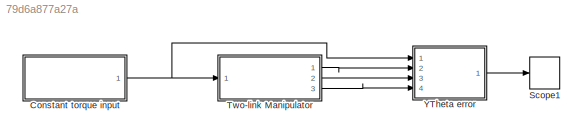
MODEL slx_79d6a877a27a
KIND model
CONFIG AbsTol = auto
CONFIG FixedStep = auto
CONFIG MaxStep = auto
CONFIG MinStep = auto
CONFIG RelTol = 1e-3
CONFIG SampleTimeConstraint = Unconstrained
CONFIG Solver = ode45
CONFIG SolverMode = Auto
CONFIG SolverName = ode45
CONFIG StartTime = 0.0
CONFIG StopTime = 10
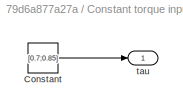
BLOCK [SubSystem] Constant torque input
  Ports = [0, 1]
  RequestExecContextInheritance = off
BLOCK [Constant] Constant torque input/Constant
  Value = [0.7;0.85]
BLOCK [Outport] Constant torque input/tau
  IconDisplay = Port number
BLOCK [TimeScope] Scope1
  NumInputPorts = 1
  Ports = [1]
  ScopeSpecificationString = Simulink.scopes.TimeScopeBlockCfg('CurrentConfiguration', extmgr.ConfigurationSet(extmgr.Configuration('Core','General UI',true,'FigureColor',[1 1 1]),extmgr.Configuration('Core','Source UI',true),extmgr.Configuration('Sources','WiredSimulink',true,'DataLoggingLimitDataPoints',true,'DataLoggingDecimation','1','DataLoggingDecimateData',true,'DataLoggingSaveFormat','Array','DataLoggingVariableName',...<+1906ch>
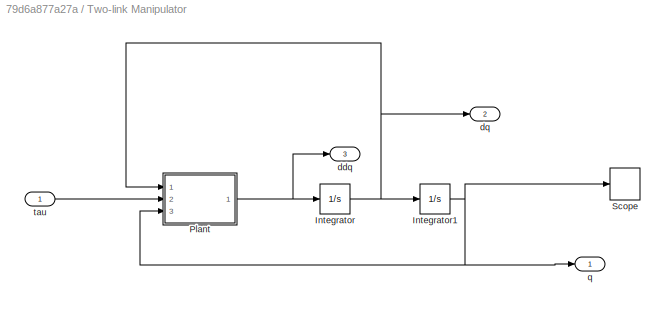
BLOCK [SubSystem] Two-link Manipulator
  Ports = [1, 3]
  RequestExecContextInheritance = off
BLOCK [Integrator] Two-link Manipulator/Integrator
  InitialCondition = [0 0]
  Ports = [1, 1]
BLOCK [Integrator] Two-link Manipulator/Integrator1
  InitialCondition = [0 0]
  Ports = [1, 1]
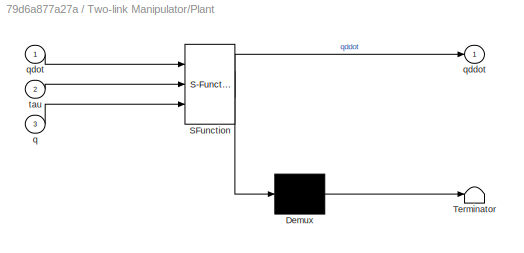
BLOCK [SubSystem] Two-link Manipulator/Plant
  ErrorFcn = Stateflow.Translate.translate
  PermitHierarchicalResolution = ExplicitOnly
  Ports = [3, 1]
  RequestExecContextInheritance = off
  SFBlockType = MATLAB Function
  TreatAsAtomicUnit = on
BLOCK [Demux] Two-link Manipulator/Plant/ Demux 
  Outputs = 1
  Ports = [1, 1]
BLOCK [S-Function] Two-link Manipulator/Plant/ SFunction 
  EnableBusSupport = on
  FunctionName = sf_sfun
  PortCounts = [3 2]
  Ports = [3, 2]
  Tag = Stateflow S-Function HW1_4 2
BLOCK [Terminator] Two-link Manipulator/Plant/ Terminator 
BLOCK [Inport] Two-link Manipulator/Plant/q
  IconDisplay = Port number
  Port = 3
BLOCK [Outport] Two-link Manipulator/Plant/qddot
  IconDisplay = Port number
BLOCK [Inport] Two-link Manipulator/Plant/qdot
  IconDisplay = Port number
BLOCK [Inport] Two-link Manipulator/Plant/tau
  IconDisplay = Port number
  Port = 2
BLOCK [TimeScope] Two-link Manipulator/Scope
  NumInputPorts = 1
  Ports = [1]
  ScopeSpecificationString = Simulink.scopes.TimeScopeBlockCfg('CurrentConfiguration', extmgr.ConfigurationSet(extmgr.Configuration('Core','General UI',true,'FigureColor',[1 1 1]),extmgr.Configuration('Core','Source UI',true),extmgr.Configuration('Sources','WiredSimulink',true,'DataLoggingLimitDataPoints',true,'DataLoggingDecimation','1','DataLoggingDecimateData',true,'DataLoggingSaveFormat','Array','DataLoggingVariableName',...<+1906ch>
BLOCK [Outport] Two-link Manipulator/ddq
  IconDisplay = Port number
  Port = 3
BLOCK [Outport] Two-link Manipulator/dq
  IconDisplay = Port number
  Port = 2
BLOCK [Outport] Two-link Manipulator/q
  IconDisplay = Port number
BLOCK [Inport] Two-link Manipulator/tau
  IconDisplay = Port number
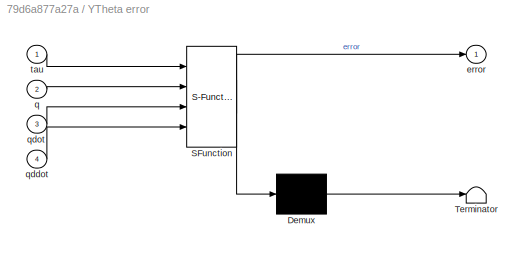
BLOCK [SubSystem] YTheta error
  ErrorFcn = Stateflow.Translate.translate
  PermitHierarchicalResolution = ExplicitOnly
  Ports = [4, 1]
  RequestExecContextInheritance = off
  SFBlockType = MATLAB Function
  TreatAsAtomicUnit = on
BLOCK [Demux] YTheta error/ Demux 
  Outputs = 1
  Ports = [1, 1]
BLOCK [S-Function] YTheta error/ SFunction 
  EnableBusSupport = on
  FunctionName = sf_sfun
  PortCounts = [4 2]
  Ports = [4, 2]
  Tag = Stateflow S-Function HW1_4 3
BLOCK [Terminator] YTheta error/ Terminator 
BLOCK [Outport] YTheta error/error
  IconDisplay = Port number
BLOCK [Inport] YTheta error/q
  IconDisplay = Port number
  Port = 2
BLOCK [Inport] YTheta error/qddot
  IconDisplay = Port number
  Port = 4
BLOCK [Inport] YTheta error/qdot
  IconDisplay = Port number
  Port = 3
BLOCK [Inport] YTheta error/tau
  IconDisplay = Port number
LINE Constant torque input/Constant:1 -> Constant torque input/tau:1
NET Constant torque input:1 -> Two-link Manipulator:1, YTheta error:1
NET Two-link Manipulator/Integrator1:1 -> Two-link Manipulator/Plant:3, Two-link Manipulator/Scope:1, Two-link Manipulator/q:1
NET Two-link Manipulator/Integrator:1 -> Two-link Manipulator/Integrator1:1, Two-link Manipulator/Plant:1, Two-link Manipulator/dq:1
NET Two-link Manipulator/Plant:1 -> Two-link Manipulator/Integrator:1, Two-link Manipulator/ddq:1
LINE Two-link Manipulator/tau:1 -> Two-link Manipulator/Plant:2
LINE Two-link Manipulator:1 -> YTheta error:2
LINE Two-link Manipulator:2 -> YTheta error:3
LINE Two-link Manipulator:3 -> YTheta error:4
LINE YTheta error:1 -> Scope1:1
note: NET lines group one-source signal fan-out (src -> all destinations, sorted); 1:1 wires keep LINE
CHART Two-link Manipulator/Plant states=1 transitions=1
  STATE_LABEL 'eML_blk_kernel()'
  STATE_LABEL 'SCRIPT:\nfunction qddot = fcn(qdot,tau,q)\n%#codegen\nM1=1;\nM2=0.8;\nI1=0.05;\nI2=0.03;\nL1=1.2;\nL2=0.8;\nLc1=L1/2;\nLc2=L2/2;\ng=9.8;\n\nD=[M1*Lc1^2+M2*(L1^2+Lc2^2+2*L1*Lc2*cos(q(2)))+I1+I2 , M2*(Lc2^2+L1*Lc2*cos(q(2)))+I2 ;...\n   M2*(Lc2^2+L1*Lc2*cos(q(2)))+I2                    , M2*Lc2^2+I2];\nC=[-(M2*L1*Lc2*sin(q(2)))*qdot(2) , -(M2*L1*Lc2*sin(q(2)))*(qdot(1)+qdot(2));...\n    (M2*L1*Lc2*sin(q(2)))*qdot(1...<+120ch>'
CHART YTheta error states=1 transitions=1
  STATE_LABEL 'eML_blk_kernel()'
  STATE_LABEL 'SCRIPT:\nfunction error = fcn(tau,q,qdot,qddot)\n%#codegen\nM1=1;\nM2=0.8;\nI1=0.05;\nI2=0.03;\nL1=1.2;\nL2=0.8;\nLc1=L1/2;\nLc2=L2/2;\ng=9.8;\nY=[qddot(1) , cos(q(2))*(2*qddot(1)+qddot(2))-sin(q(2))*(qdot(2)^2+2*qdot(1)*qdot(2)) , qddot(2)          , g*cos(q(1)) , g*cos(q(1)+q(2)) ;...\n    0       , cos(q(2))*qddot(1)+sin(q(2))*qdot(1)^2                                  , qddot(1)+qddot(2) ,  0          , g*...<+123ch>'
